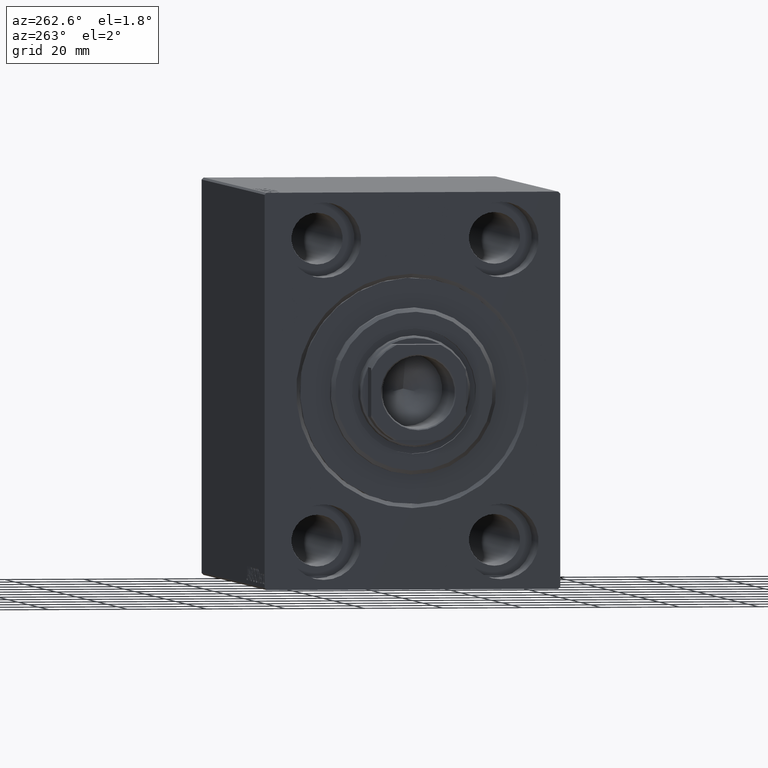
[diagram: clean part render]
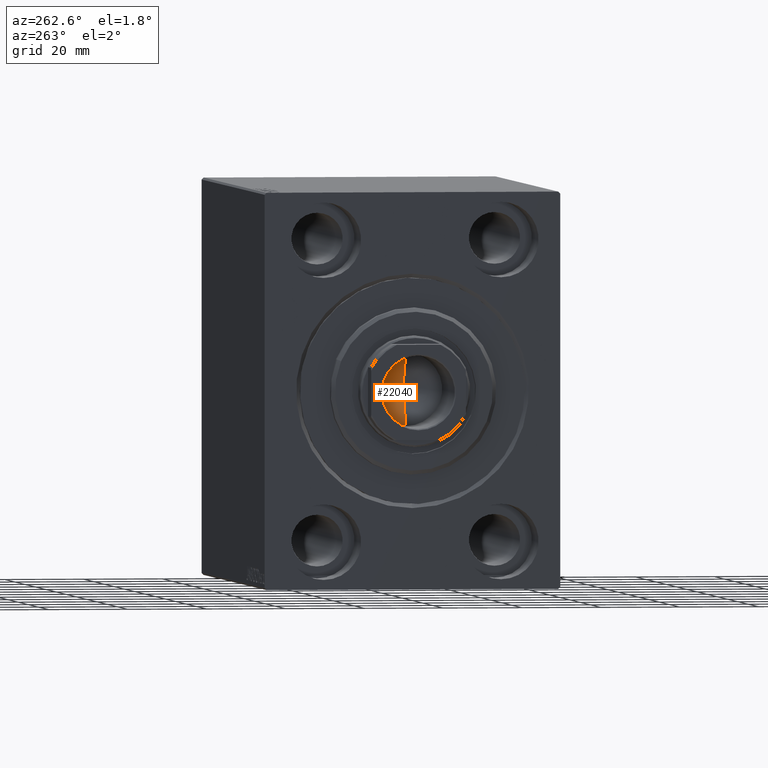
[diagram: same view with one face highlighted and labeled with its STEP entity id]
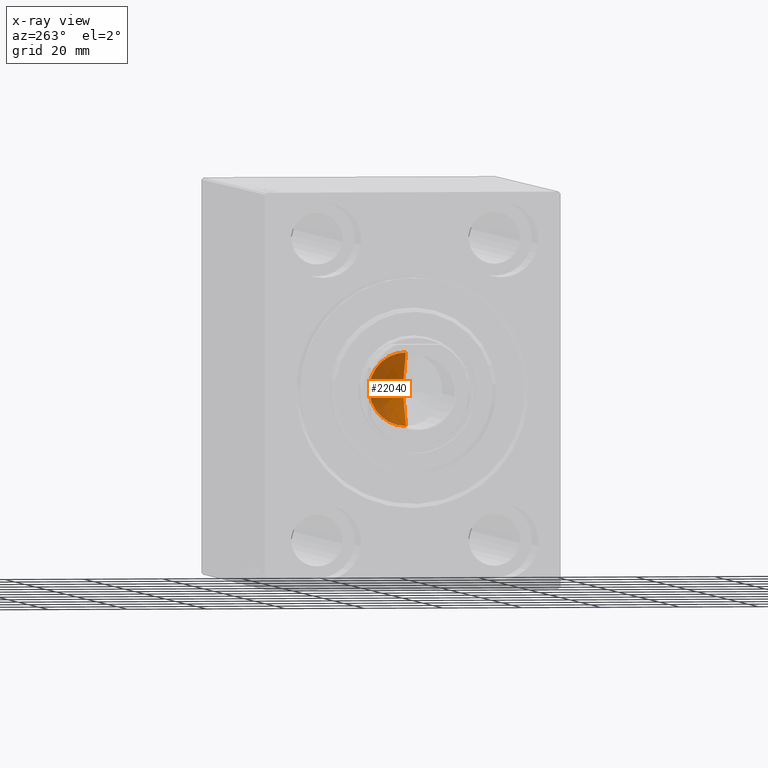
[diagram: x-ray of the same camera — body ghosted, the highlighted face saturated]
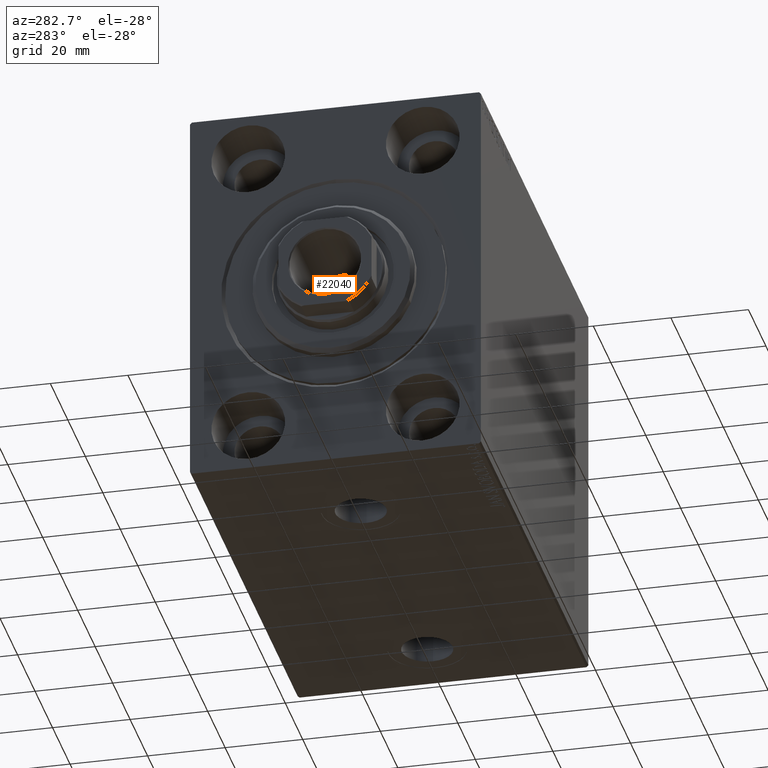
[diagram: same view with one face highlighted and labeled with its STEP entity id]
A machine part, auxiliary view. The second image highlights one B-rep face of the part: STEP entity #22040.
The next image is the same camera in x-ray: the body ghosted, the highlighted face saturated — about 46% of this face is hidden behind the body in this view.
A second angle (auxiliary view) of the same face is appended — the face is thin or edge-on in the first view.
In plain terms, the highlighted conical surface has half-angle 59 deg.
Its self-contained STEP definition (entity closure, byte-faithful):
#1138 = CIRCLE ( 'NONE', #4688, 9.249999999999994671 ) ;
#2464 = VERTEX_POINT ( 'NONE', #40507 ) ;
#2553 = VERTEX_POINT ( 'NONE', #3038 ) ;
#3038 = CARTESIAN_POINT ( 'NONE',  ( 9.249999999999994671, 0.000000000000000000, 96.00000000000000000 ) ) ;
#3706 = CARTESIAN_POINT ( 'NONE',  ( 9.249999999999994671, 0.000000000000000000, 96.00000000000000000 ) ) ;
#4092 = EDGE_LOOP ( 'NONE', ( #17553, #24435, #43721 ) ) ;
#4148 = LINE ( 'NONE', #3706, #25574 ) ;
#4688 = AXIS2_PLACEMENT_3D ( 'NONE', #13361, #14007, #30304 ) ;
#6753 = CARTESIAN_POINT ( 'NONE',  ( 0.000000000000000000, 0.000000000000000000, 96.00000000000000000 ) ) ;
#7182 = DIRECTION ( 'NONE',  ( 1.000000000000000000, 0.000000000000000000, 0.000000000000000000 ) ) ;
#9335 = VERTEX_POINT ( 'NONE', #36811 ) ;
#11927 = LINE ( 'NONE', #18401, #16410 ) ;
#12938 = EDGE_CURVE ( 'NONE', #9335, #2553, #4148, .T. ) ;
#13361 = CARTESIAN_POINT ( 'NONE',  ( 0.000000000000000000, 0.000000000000000000, 96.00000000000000000 ) ) ;
#14007 = DIRECTION ( 'NONE',  ( -0.000000000000000000, -0.000000000000000000, 1.000000000000000000 ) ) ;
#16410 = VECTOR ( 'NONE', #21515, 1000.000000000000000 ) ;
#17024 = DIRECTION ( 'NONE',  ( -0.000000000000000000, -0.000000000000000000, 1.000000000000000000 ) ) ;
#17553 = ORIENTED_EDGE ( 'NONE', *, *, #21797, .F. ) ;
#18401 = CARTESIAN_POINT ( 'NONE',  ( -9.249999999999994671, 1.132798289211300909E-15, 96.00000000000000000 ) ) ;
#21515 = DIRECTION ( 'NONE',  ( -0.8571673007021124446, 1.049727191138618819E-16, 0.5150380749100539335 ) ) ;
#21797 = EDGE_CURVE ( 'NONE', #9335, #2464, #11927, .T. ) ;
#22040 = ADVANCED_FACE ( 'NONE', ( #34388 ), #42766, .F. ) ;
#24435 = ORIENTED_EDGE ( 'NONE', *, *, #12938, .T. ) ;
#24982 = AXIS2_PLACEMENT_3D ( 'NONE', #6753, #17024, #7182 ) ;
#25574 = VECTOR ( 'NONE', #37611, 1000.000000000000000 ) ;
#30304 = DIRECTION ( 'NONE',  ( 1.000000000000000000, 0.000000000000000000, 0.000000000000000000 ) ) ;
#34388 = FACE_OUTER_BOUND ( 'NONE', #4092, .T. ) ;
#36811 = CARTESIAN_POINT ( 'NONE',  ( -6.793016015247754405E-15, 0.000000000000000000, 90.44203927399507847 ) ) ;
#37611 = DIRECTION ( 'NONE',  ( 0.8571673007021124446, 0.000000000000000000, 0.5150380749100539335 ) ) ;
#37939 = EDGE_CURVE ( 'NONE', #2553, #2464, #1138, .T. ) ;
#40507 = CARTESIAN_POINT ( 'NONE',  ( -9.249999999999994671, 1.132798289211300909E-15, 96.00000000000000000 ) ) ;
#42766 = CONICAL_SURFACE ( 'NONE', #24982, 9.249999999999994671, 1.029744258676654756 ) ;
#43721 = ORIENTED_EDGE ( 'NONE', *, *, #37939, .T. ) ;